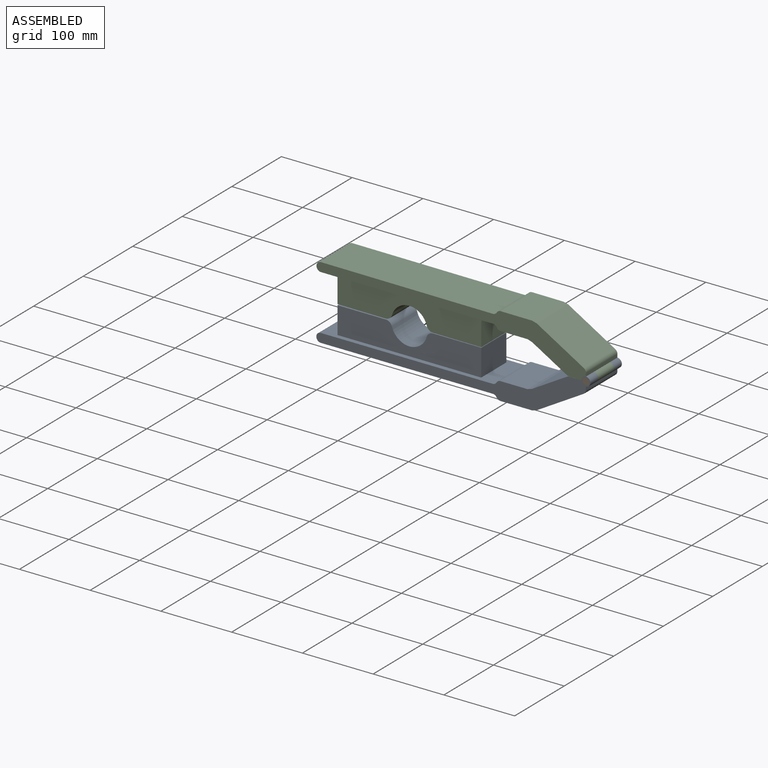
[diagram: assembled view]
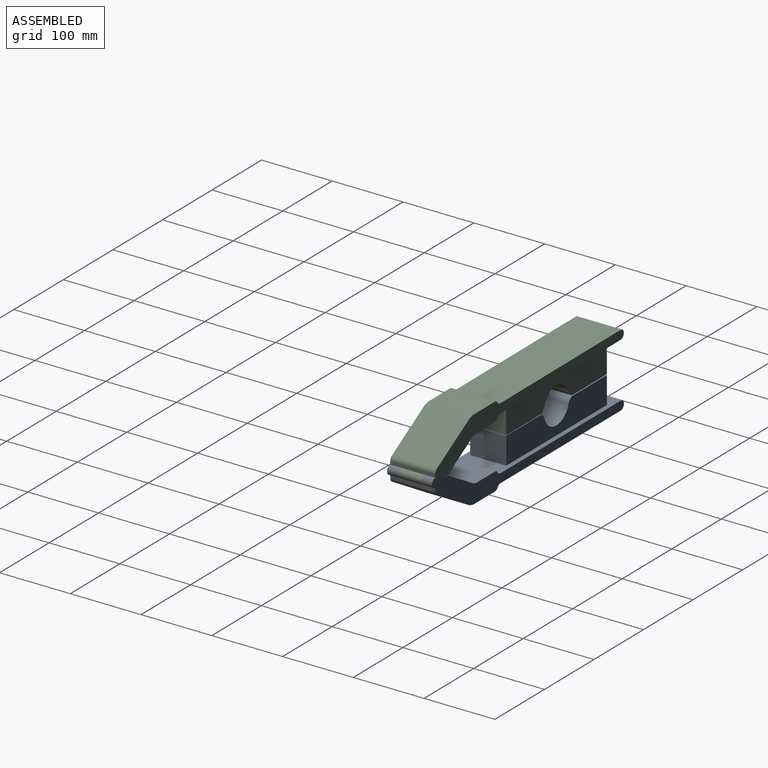
[diagram: assembled view, second angle]
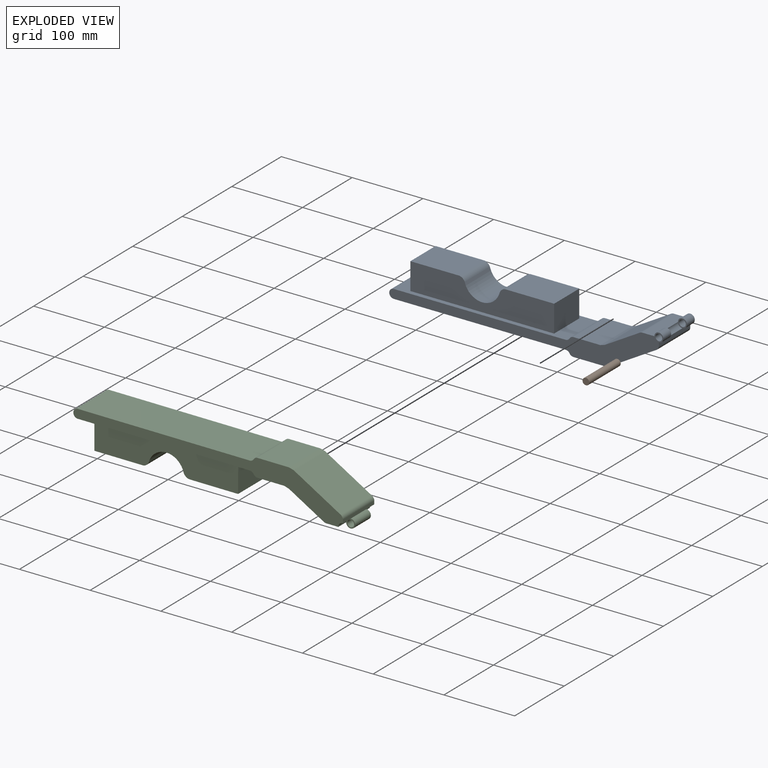
[diagram: exploded view]
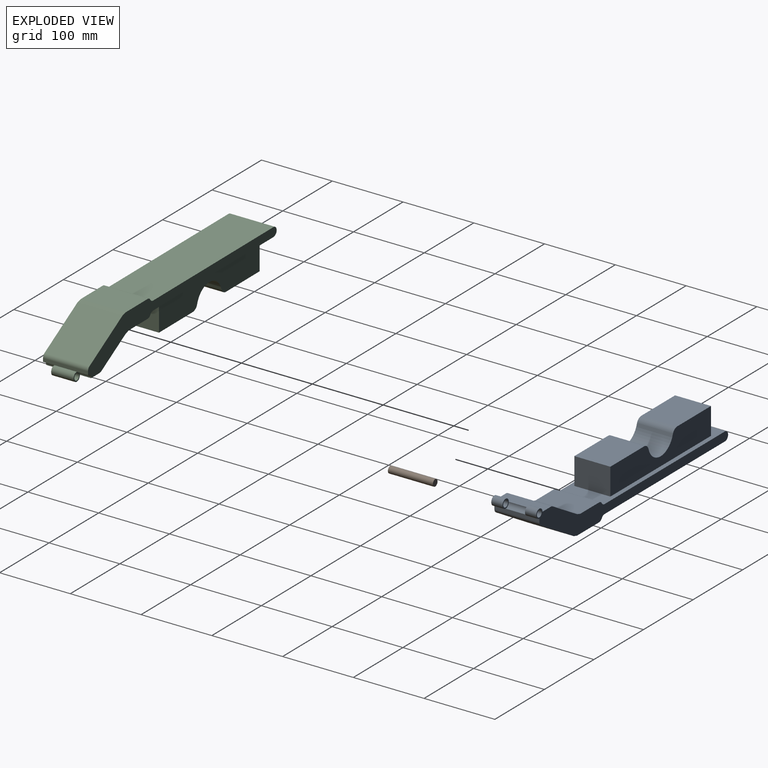
[diagram: exploded view, second angle]
ASSEMBLY  parts=3 mates=2
PART A: 35 faces, bbox 387.4x63.5x63.5 mm
  f0: cylinder r=6.35mm len=15.88mm, axis (0,1,0), area 475mm2, adj f11,f13,f22,f33
  f1: cylinder r=4.76mm len=15.88mm, axis (0,1,0), area 475mm2, adj f22,f33
  f2: plane 243x63.5mm, normal (0,0,1), area 5108mm2, adj f3,f20,f21,f22,f23,f24,f30,f31
  f3: cylinder r=6.35mm len=63.5mm, axis (0,1,0), area 1266.8mm2, adj f2,f4,f21,f22
  f4: plane 243x63.5mm, normal (0,0,-1), area 15430.6mm2, adj f3,f5,f21,f22
  f5: cylinder r=6.35mm len=63.5mm, axis (0,1,0), area 422.3mm2, adj f4,f6,f21,f22
  f6: cylinder r=6.35mm len=63.5mm, axis (0,1,0), area 422.3mm2, adj f5,f7,f21,f22
  f7: plane 63.5x44.45mm, normal (0,0,-1), area 2822.6mm2, adj f6,f8,f21,f22
  f8: plane 63.5x6.4mm, normal (0.26,0,-0.97), area 420.9mm2, adj f7,f9,f21,f22
  f9: plane 66.65x63.5mm, normal (0.5,0,-0.86), area 4899.8mm2, adj f8,f10,f21,f22
  f10: cylinder r=6.35mm len=63.5mm, axis (0,1,0), area 420.5mm2, adj f9,f11,f21,f22
  f11: plane 63.5x4.71mm, normal (1,0,0), area 298.8mm2, adj f0,f10,f12,f21,f22,f32
  f12: cylinder r=6.35mm len=15.88mm, axis (0,1,0), area 475mm2, adj f11,f13,f21,f34
  f13: plane 63.5x17.14mm, normal (0,0,1), area 1088.3mm2, adj f0,f12,f14,f21,f22,f32
  f14: cylinder r=6.35mm len=63.5mm, axis (0,1,0), area 212.9mm2, adj f13,f15,f21,f22
  f15: plane 63.5x49.51mm, normal (-0.5,0,0.86), area 3639.9mm2, adj f14,f16,f21,f22
  f16: plane 63.5x6.4mm, normal (-0.3,0,0.95), area 425.8mm2, adj f15,f17,f21,f22
  f17: plane 63.5x38.05mm, normal (0,0,1), area 2416.2mm2, adj f16,f18,f21,f22
  f18: cylinder r=6.35mm len=63.5mm, axis (0,1,0), area 422.3mm2, adj f17,f20,f21,f22
  f19: cylinder r=4.76mm len=15.88mm, axis (0,1,0), area 475mm2, adj f21,f34
  f20: cylinder r=6.35mm len=63.5mm, axis (0,1,0), area 422.3mm2, adj f2,f18,f21,f22
  f21: plane 387.35x63.5mm, normal (0,-1,0), area 6564.8mm2, adj f2,f3,f4,f5,f6,f7,f8,f9
  f22: plane 387.35x63.5mm, normal (0,1,0), area 6564.8mm2, adj f0,f1,f2,f3,f4,f5,f6,f7
  f23: plane 50.8x38.1mm, normal (-1,0,0), area 1935.5mm2, adj f2,f29,f30,f31
  f24: plane 50.8x38.1mm, normal (1,0,0), area 1935.5mm2, adj f2,f25,f30,f31
  f25: plane 68x50.8mm, normal (0,0,1), area 3454.3mm2, adj f24,f26,f30,f31
  f26: cylinder r=9.53mm len=50.8mm, axis (0,1,0), area 626.4mm2, adj f25,f27,f30,f31
  f27: cylinder r=25.4mm len=50.8mm, axis (0,1,0), area 3340.8mm2, adj f26,f28,f30,f31
  f28: cylinder r=9.53mm len=50.8mm, axis (0,1,0), area 626.4mm2, adj f27,f29,f30,f31
  f29: plane 68x50.8mm, normal (0,0,1), area 3454.3mm2, adj f23,f28,f30,f31
  f30: plane 203.2x38.1mm, normal (0,-1,0), area 6704.1mm2, adj f2,f23,f24,f25,f26,f27,f28,f29
  f31: plane 203.2x38.1mm, normal (0,1,0), area 6704.1mm2, adj f2,f23,f24,f25,f26,f27,f28,f29
  f32: cylinder r=6.35mm len=31.75mm, axis (0,-1,0), area 316.7mm2, adj f11,f13,f33,f34
  f33: plane 12.7x12.7mm, normal (0,-1,0), area 55.4mm2, adj f0,f1,f32
  f34: plane 12.7x12.7mm, normal (0,1,0), area 55.4mm2, adj f12,f19,f32
PART B: 3 faces, bbox 9.5x63.5x9.5 mm
  f0: cylinder r=4.76mm len=63.5mm, axis (0,1,0), area 1900.2mm2, adj f1,f2
  f1: plane 9.53x9.53mm, normal (0,-1,0), area 71.3mm2, adj f0
  f2: plane 9.53x9.53mm, normal (0,1,0), area 71.3mm2, adj f0
PART C: 34 faces, bbox 387.4x63.5x63.5 mm
  f0: cylinder r=4.76mm len=31.75mm, axis (0,1,0), area 950.1mm2, adj f31,f33
  f1: cylinder r=6.35mm len=31.75mm, axis (0,1,0), area 950.1mm2, adj f11,f12,f31,f33
  f2: plane 243x63.5mm, normal (0,0,1), area 5108mm2, adj f3,f18,f19,f20,f21,f22,f28,f29
  f3: cylinder r=6.35mm len=63.5mm, axis (0,1,0), area 1266.8mm2, adj f2,f4,f19,f20
  f4: plane 243x63.5mm, normal (0,0,-1), area 15430.6mm2, adj f3,f5,f19,f20
  f5: cylinder r=6.35mm len=63.5mm, axis (0,1,0), area 422.3mm2, adj f4,f6,f19,f20
  f6: cylinder r=6.35mm len=63.5mm, axis (0,1,0), area 422.3mm2, adj f5,f7,f19,f20
  f7: plane 63.5x44.45mm, normal (0,0,-1), area 2822.6mm2, adj f6,f8,f19,f20
  f8: plane 63.5x6.4mm, normal (0.26,0,-0.97), area 420.9mm2, adj f7,f9,f19,f20
  f9: plane 66.65x63.5mm, normal (0.5,0,-0.86), area 4899.8mm2, adj f8,f10,f19,f20
  f10: cylinder r=6.35mm len=63.5mm, axis (0,1,0), area 420.5mm2, adj f9,f11,f19,f20
  f11: plane 63.5x4.71mm, normal (1,0,0), area 298.8mm2, adj f1,f10,f19,f20,f30,f32
  f12: plane 63.5x17.14mm, normal (0,0,1), area 1088.3mm2, adj f1,f13,f19,f20,f30,f32
  f13: cylinder r=6.35mm len=63.5mm, axis (0,1,0), area 212.9mm2, adj f12,f14,f19,f20
  f14: plane 63.5x49.51mm, normal (-0.5,0,0.86), area 3639.9mm2, adj f13,f15,f19,f20
  f15: plane 63.5x6.4mm, normal (-0.3,0,0.95), area 425.8mm2, adj f14,f16,f19,f20
  f16: plane 63.5x38.05mm, normal (0,0,1), area 2416.2mm2, adj f15,f17,f19,f20
  f17: cylinder r=6.35mm len=63.5mm, axis (0,1,0), area 422.3mm2, adj f16,f18,f19,f20
  f18: cylinder r=6.35mm len=63.5mm, axis (0,1,0), area 422.3mm2, adj f2,f17,f19,f20
  f19: plane 381x57.15mm, normal (0,-1,0), area 6509.4mm2, adj f2,f3,f4,f5,f6,f7,f8,f9
  f20: plane 381x57.15mm, normal (0,1,0), area 6509.4mm2, adj f2,f3,f4,f5,f6,f7,f8,f9
  f21: plane 50.8x38.1mm, normal (-1,0,0), area 1935.5mm2, adj f2,f27,f28,f29
  f22: plane 50.8x38.1mm, normal (1,0,0), area 1935.5mm2, adj f2,f23,f28,f29
  f23: plane 68x50.8mm, normal (0,0,1), area 3454.3mm2, adj f22,f24,f28,f29
  f24: cylinder r=9.53mm len=50.8mm, axis (0,1,0), area 626.4mm2, adj f23,f25,f28,f29
  f25: cylinder r=25.4mm len=50.8mm, axis (0,1,0), area 3340.8mm2, adj f24,f26,f28,f29
  f26: cylinder r=9.53mm len=50.8mm, axis (0,1,0), area 626.4mm2, adj f25,f27,f28,f29
  f27: plane 68x50.8mm, normal (0,0,1), area 3454.3mm2, adj f21,f26,f28,f29
  f28: plane 203.2x38.1mm, normal (0,-1,0), area 6704.1mm2, adj f2,f21,f22,f23,f24,f25,f26,f27
  f29: plane 203.2x38.1mm, normal (0,1,0), area 6704.1mm2, adj f2,f21,f22,f23,f24,f25,f26,f27
  f30: cylinder r=6.35mm len=15.88mm, axis (0,-1,0), area 158.3mm2, adj f11,f12,f19,f31
  f31: plane 12.7x12.7mm, normal (0,-1,0), area 55.4mm2, adj f0,f1,f30
  f32: cylinder r=6.35mm len=15.88mm, axis (0,1,0), area 158.3mm2, adj f11,f12,f20,f33
  f33: plane 12.7x12.7mm, normal (0,1,0), area 55.4mm2, adj f0,f1,f32
PLACE A t=(20.17,-81.98,47.19)mm fixed
PLACE B t=(20.17,-50.23,49.47)mm
PLACE C rot(axis=(1,0,0),180deg) t=(20.17,-81.98,47.19)mm
MATE revolute C.f0 <-> A.f0  axis (0,1,0) through (20.17,-66.11,47.19)mm
MATE fastened B.f0 <-> A.f0  axis (0,-1,0) through (20.17,-113.73,47.19)mm
